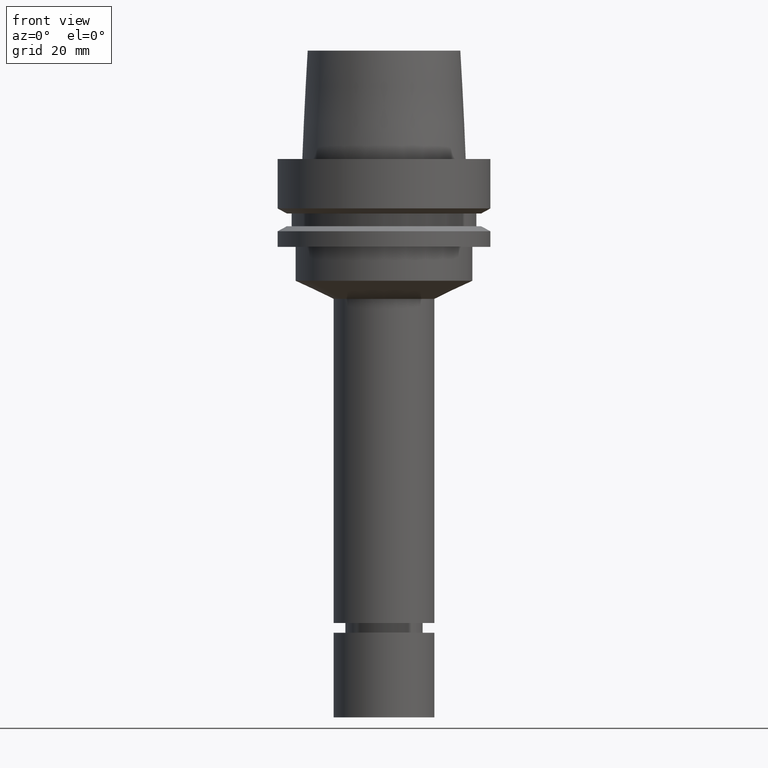
[diagram: clean part render]
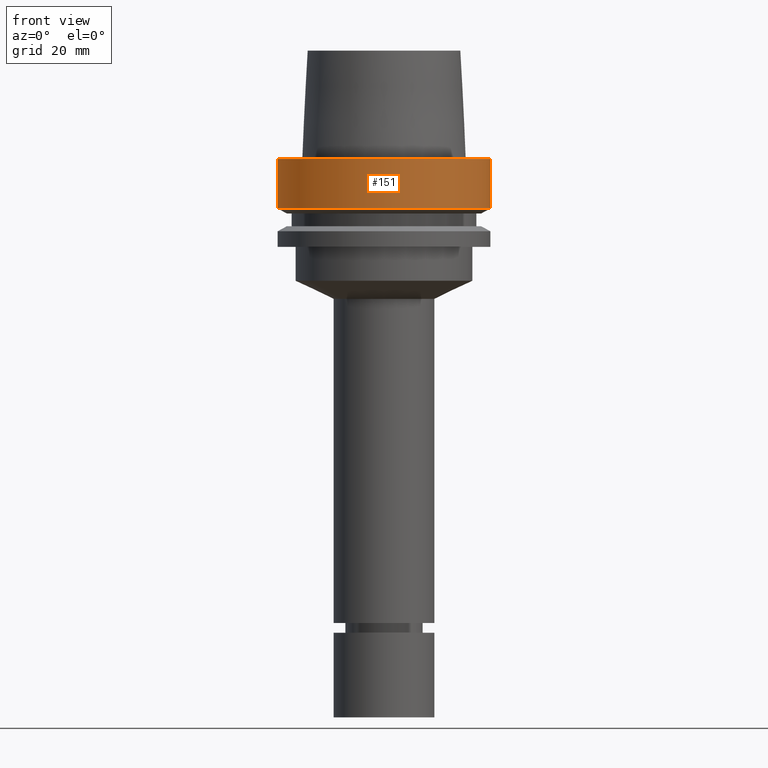
[diagram: same view with one face highlighted and labeled with its STEP entity id]
A machine part, front view. The second image highlights one B-rep face of the part: STEP entity #151.
In plain terms, the highlighted cylindrical surface (bore or boss wall) has radius 31.5 mm, axis along (-0, -0, 1).
Its self-contained STEP definition (entity closure, byte-faithful):
#128=EDGE_CURVE('Unnamed[1]',#292,#292,#293,.T.);
#151=ADVANCED_FACE('Unnamed[1]',(#328,#329),#330,.T.);
#185=EDGE_CURVE('Unnamed[1]',#378,#378,#379,.T.);
#292=VERTEX_POINT('',#501);
#293=CIRCLE('',#502,31.5000000000001);
#328=FACE_BOUND('',#546,.T.);
#329=FACE_BOUND('',#547,.T.);
#330=CYLINDRICAL_SURFACE('',#548,31.5);
#378=VERTEX_POINT('',#610);
#379=CIRCLE('',#611,31.5);
#501=CARTESIAN_POINT('',(-3.88267476788467E-031,31.5000000000001,3.85763741731417E-015));
#502=AXIS2_PLACEMENT_3D('',#717,#718,#719);
#546=EDGE_LOOP('',(#757));
#547=EDGE_LOOP('',(#758));
#548=AXIS2_PLACEMENT_3D('',#759,#760,#761);
#610=CARTESIAN_POINT('',(8.95369947681261E-016,31.5,-14.6225009252407));
#611=AXIS2_PLACEMENT_3D('',#809,#810,#811);
#717=CARTESIAN_POINT('',(0.0,0.0,0.0));
#718=DIRECTION('',(-6.12323399573677E-017,-1.22464679914735E-016,1.0));
#719=DIRECTION('',(-1.23259516440783E-032,1.0,1.22464679914735E-016));
#757=ORIENTED_EDGE('',*,*,#128,.F.);
#758=ORIENTED_EDGE('',*,*,#185,.T.);
#759=CARTESIAN_POINT('',(4.47684973840631E-016,8.95369947681262E-016,-7.31125046262035));
#760=DIRECTION('',(-6.12323399573677E-017,-1.22464679914735E-016,1.0));
#761=DIRECTION('',(-1.23259516440783E-032,1.0,1.22464679914735E-016));
#809=CARTESIAN_POINT('',(8.95369947681262E-016,1.79073989536252E-015,-14.6225009252407));
#810=DIRECTION('',(-6.12323399573677E-017,-1.22464679914735E-016,1.0));
#811=DIRECTION('',(-1.23259516440783E-032,1.0,1.22464679914735E-016));